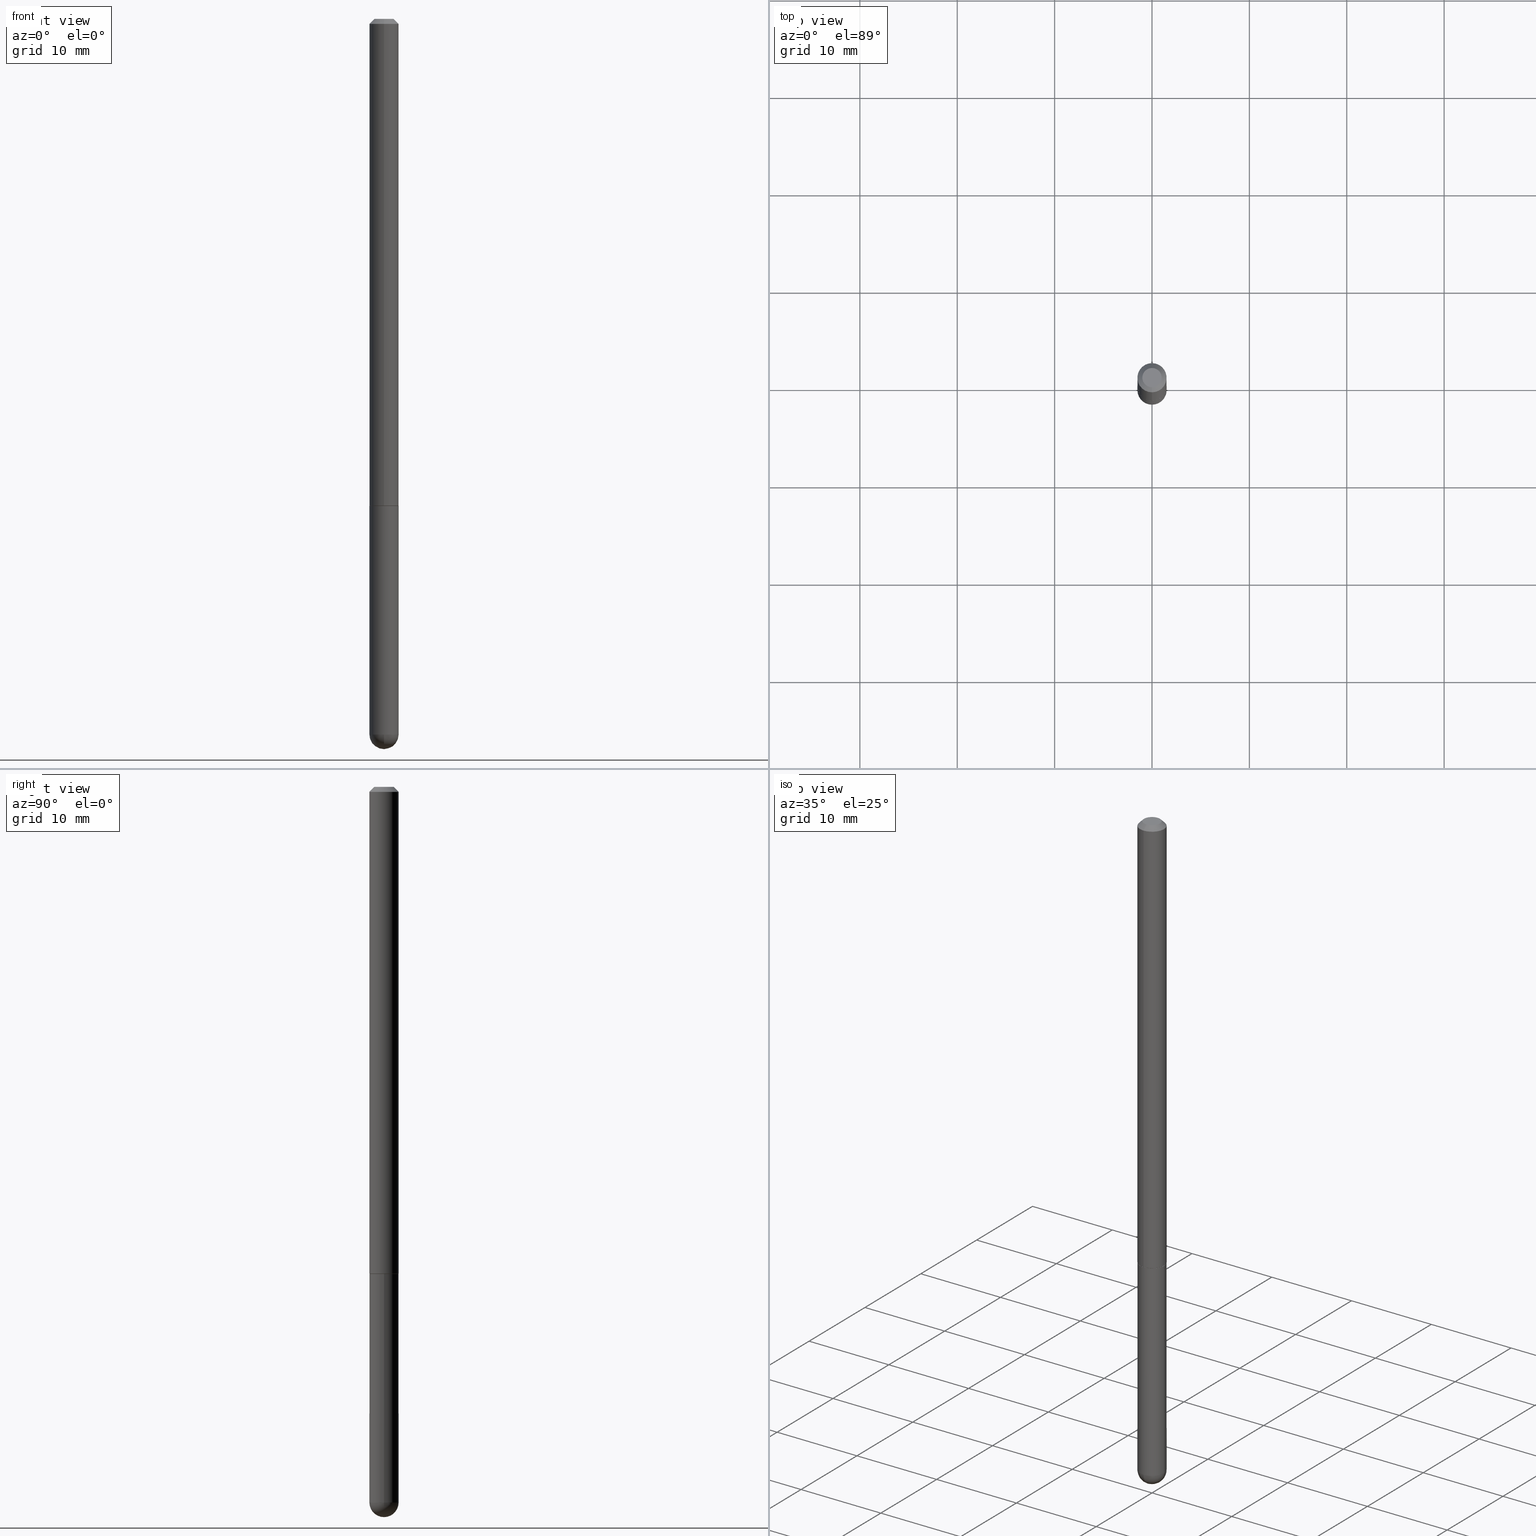
[diagram: canonical four-view strip — front | top / right | iso, engineering-drawing reading convention]
A machine part, canonical four-view strip (front | top / right | iso — engineering-drawing reading convention). The complete STEP part file that produces these views, byte-faithful:
ISO-10303-21;
HEADER;
FILE_DESCRIPTION (( 'STEP AP203' ),
    '1' );
FILE_NAME ('49583.STEP',
    '2024-04-10T12:29:02',
    ( '' ),
    ( '' ),
    'SwSTEP 2.0',
    'SolidWorks 2023',
    '' );
FILE_SCHEMA (( 'CONFIG_CONTROL_DESIGN' ));
ENDSEC;

DATA;
#1 = ADVANCED_FACE ( 'NONE', ( #72 ), #211, .F. ) ;
#2 = VERTEX_POINT ( 'NONE', #228 ) ;
#3 = CYLINDRICAL_SURFACE ( 'NONE', #190, 0.05905000000000010935 ) ;
#4 = DIRECTION ( 'NONE',  ( -2.452606242276133797E-29, 3.481260124123203654E-15, 1.000000000000000000 ) ) ;
#5 =( NAMED_UNIT ( * ) PLANE_ANGLE_UNIT ( ) SI_UNIT ( $, .RADIAN. ) );
#6 = APPROVAL ( #99, 'UNSPECIFIED' ) ;
#7 = ORIENTED_EDGE ( 'NONE', *, *, #314, .F. ) ;
#8 = APPLICATION_PROTOCOL_DEFINITION ( 'international standard', 'config_control_design', 1994, #85 ) ;
#9 = DIRECTION ( 'NONE',  ( -2.452606242276133797E-29, 3.481260124123203654E-15, 1.000000000000000000 ) ) ;
#10 = VERTEX_POINT ( 'NONE', #302 ) ;
#11 = AXIS2_PLACEMENT_3D ( 'NONE', #88, #191, #318 ) ;
#12 = ORIENTED_EDGE ( 'NONE', *, *, #275, .F. ) ;
#13 = ORIENTED_EDGE ( 'NONE', *, *, #178, .T. ) ;
#14 = LINE ( 'NONE', #297, #315 ) ;
#15 = COORDINATED_UNIVERSAL_TIME_OFFSET ( 5, 0, .BEHIND. ) ;
#16 = DIRECTION ( 'NONE',  ( -2.452606242276133797E-29, 3.481260124123203654E-15, 1.000000000000000000 ) ) ;
#17 = EDGE_CURVE ( 'NONE', #2, #140, #221, .T. ) ;
#18 = ORIENTED_EDGE ( 'NONE', *, *, #334, .F. ) ;
#19 = DIRECTION ( 'NONE',  ( 1.000000000000000000, -6.982962677686270655E-15, 0.000000000000000000 ) ) ;
#20 = DIRECTION ( 'NONE',  ( 1.000000000000000000, -6.982962677686270655E-15, 0.000000000000000000 ) ) ;
#21 = PERSON ( 'UNSPECIFIED', 'UNSPECIFIED', 'UNSPECIFIED', ('UNSPECIFIED'), ('UNSPECIFIED'), ('UNSPECIFIED') ) ;
#22 = ORIENTED_EDGE ( 'NONE', *, *, #245, .T. ) ;
#23 = AXIS2_PLACEMENT_3D ( 'NONE', #402, #213, #335 ) ;
#24 = CALENDAR_DATE ( 2024, 10, 4 ) ;
#25 = CIRCLE ( 'NONE', #168, 0.05905000000000001914 ) ;
#26 = AXIS2_PLACEMENT_3D ( 'NONE', #385, #200, #67 ) ;
#27 = DIRECTION ( 'NONE',  ( 6.982962677686265922E-15, 1.000000000000000000, 0.000000000000000000 ) ) ;
#28 = EDGE_CURVE ( 'NONE', #272, #289, #105, .T. ) ;
#29 = CARTESIAN_POINT ( 'NONE',  ( 7.076575357898237682E-29, -1.010347412427735067E-14, -2.893749999999999822 ) ) ;
#30 = DIRECTION ( 'NONE',  ( -2.452606242276133797E-29, 3.481260124123203654E-15, 1.000000000000000000 ) ) ;
#31 = EDGE_CURVE ( 'NONE', #390, #296, #183, .T. ) ;
#32 = AXIS2_PLACEMENT_3D ( 'NONE', #64, #319, #291 ) ;
#33 = DIRECTION ( 'NONE',  ( -2.452606242276133797E-29, 3.481260124123203654E-15, 1.000000000000000000 ) ) ;
#34 = CIRCLE ( 'NONE', #266, 0.05905000000000001914 ) ;
#35 = EDGE_LOOP ( 'NONE', ( #271, #98, #357, #109, #160 ) ) ;
#36 = AXIS2_PLACEMENT_3D ( 'NONE', #406, #121, #249 ) ;
#37 = ORGANIZATION ( 'UNSPECIFIED', 'UNSPECIFIED', '' ) ;
#38 = CARTESIAN_POINT ( 'NONE',  ( 4.827955387920569283E-29, -6.852860554336525173E-15, -1.968499999999999694 ) ) ;
#39 = CARTESIAN_POINT ( 'NONE',  ( -0.05905000000000001914, -8.068652084428701697E-15, -1.968499999999999694 ) ) ;
#40 = ORIENTED_EDGE ( 'NONE', *, *, #90, .F. ) ;
#41 = DATE_AND_TIME ( #332, #138 ) ;
#42 = CARTESIAN_POINT ( 'NONE',  ( 7.076575357898237682E-29, -1.010347412427735067E-14, -2.893749999999999822 ) ) ;
#43 = EDGE_LOOP ( 'NONE', ( #341, #172, #176, #300 ) ) ;
#44 = EDGE_LOOP ( 'NONE', ( #261, #165 ) ) ;
#45 = DIRECTION ( 'NONE',  ( -2.452606242276133237E-29, 3.481260124123204048E-15, 1.000000000000000000 ) ) ;
#46 = CARTESIAN_POINT ( 'NONE',  ( 7.076575357898237682E-29, -1.010347412427735067E-14, -2.893749999999999822 ) ) ;
#47 = PERSON_AND_ORGANIZATION_ROLE ( 'design_supplier' ) ;
#48 = CYLINDRICAL_SURFACE ( 'NONE', #57, 0.05905000000000010935 ) ;
#49 = DATE_AND_TIME ( #368, #92 ) ;
#50 = APPROVAL ( #139, 'UNSPECIFIED' ) ;
#51 = CARTESIAN_POINT ( 'NONE',  ( 4.195754854663646379E-16, 0.05904999999999335780, -1.967500000000000027 ) ) ;
#52 = EDGE_CURVE ( 'NONE', #2, #387, #258, .T. ) ;
#53 = AXIS2_PLACEMENT_3D ( 'NONE', #232, #355, #166 ) ;
#54 = VECTOR ( 'NONE', #403, 39.37007874015748143 ) ;
#55 = APPROVAL_STATUS ( 'not_yet_approved' ) ;
#56 = EDGE_CURVE ( 'NONE', #216, #10, #161, .T. ) ;
#57 = AXIS2_PLACEMENT_3D ( 'NONE', #137, #9, #177 ) ;
#58 = CARTESIAN_POINT ( 'NONE',  ( -4.053609834396394049E-16, -0.05805000000000685306, -1.968499999999999472 ) ) ;
#59 = MANIFOLD_SOLID_BREP ( 'Body-Move/Copy2[2]', #316 ) ;
#60 = VECTOR ( 'NONE', #198, 39.37007874015748143 ) ;
#61 = FACE_OUTER_BOUND ( 'NONE', #43, .T. ) ;
#62 =( LENGTH_UNIT ( ) NAMED_UNIT ( * ) SI_UNIT ( $, .METRE. ) );
#63 = DIRECTION ( 'NONE',  ( -2.445468806185136597E-29, 3.491481338843145583E-15, 1.000000000000000000 ) ) ;
#64 = CARTESIAN_POINT ( 'NONE',  ( 6.745455579984352556E-29, -1.057765649241740097E-14, -2.893749999999999822 ) ) ;
#65 = AXIS2_PLACEMENT_3D ( 'NONE', #107, #238, #132 ) ;
#66 = MECHANICAL_CONTEXT ( 'NONE', #206, 'mechanical' ) ;
#67 = DIRECTION ( 'NONE',  ( 1.000000000000000000, 0.000000000000000000, 0.000000000000000000 ) ) ;
#68 = LOCAL_TIME ( 8, 29, 2.000000000000000000, #278 ) ;
#69 = CARTESIAN_POINT ( 'NONE',  ( 4.123439461173745750E-16, 0.05904999999999994975, -0.02000000000000027450 ) ) ;
#70 = EDGE_LOOP ( 'NONE', ( #229, #134, #169, #18, #363 ) ) ;
#71 = FACE_OUTER_BOUND ( 'NONE', #321, .T. ) ;
#72 = FACE_OUTER_BOUND ( 'NONE', #44, .T. ) ;
#73 = ORIENTED_EDGE ( 'NONE', *, *, #17, .T. ) ;
#74 = DIRECTION ( 'NONE',  ( -2.452606242276133797E-29, 3.481260124123203654E-15, 1.000000000000000000 ) ) ;
#75 = PERSON_AND_ORGANIZATION_ROLE ( 'classification_officer' ) ;
#76 = PERSON_AND_ORGANIZATION ( #21, #37 ) ;
#77 = ORIENTED_EDGE ( 'NONE', *, *, #257, .F. ) ;
#78 = AXIS2_PLACEMENT_3D ( 'NONE', #348, #313, #113 ) ;
#79 = APPROVAL_DATE_TIME ( #395, #80 ) ;
#80 = APPROVAL ( #55, 'UNSPECIFIED' ) ;
#81 = DIRECTION ( 'NONE',  ( -2.452606242276133797E-29, 3.481260124123203654E-15, 1.000000000000000000 ) ) ;
#82 = SECURITY_CLASSIFICATION_LEVEL ( 'unclassified' ) ;
#83 = VECTOR ( 'NONE', #237, 39.37007874015748143 ) ;
#84 = DIRECTION ( 'NONE',  ( 2.452606242276133237E-29, -3.481260124123204048E-15, -1.000000000000000000 ) ) ;
#85 = APPLICATION_CONTEXT ( 'configuration controlled 3d designs of mechanical parts and assemblies' ) ;
#86 = PERSON_AND_ORGANIZATION ( #21, #37 ) ;
#87 = DIRECTION ( 'NONE',  ( -2.452606242276134078E-29, 3.481260124123204048E-15, 1.000000000000000000 ) ) ;
#88 = CARTESIAN_POINT ( 'NONE',  ( 4.905212484552284025E-31, -6.962520248246431022E-17, -0.02000000000000006981 ) ) ;
#89 = DIRECTION ( 'NONE',  ( 1.000000000000000000, -6.982962677686270655E-15, 0.000000000000000000 ) ) ;
#90 = EDGE_CURVE ( 'NONE', #387, #207, #210, .T. ) ;
#91 = CYLINDRICAL_SURFACE ( 'NONE', #400, 0.05905000000000001914 ) ;
#92 = LOCAL_TIME ( 8, 29, 2.000000000000000000, #225 ) ;
#93 =( GEOMETRIC_REPRESENTATION_CONTEXT ( 3 ) GLOBAL_UNCERTAINTY_ASSIGNED_CONTEXT ( ( #285 ) ) GLOBAL_UNIT_ASSIGNED_CONTEXT ( ( #254, #5, #356 ) ) REPRESENTATION_CONTEXT ( 'NONE', 'WORKASPACE' ) );
#94 = EDGE_CURVE ( 'NONE', #289, #272, #25, .T. ) ;
#95 = CARTESIAN_POINT ( 'NONE',  ( 6.745455579984352556E-29, -1.057765649241740097E-14, -2.893749999999999822 ) ) ;
#96 = ORIENTED_EDGE ( 'NONE', *, *, #345, .F. ) ;
#97 = DIRECTION ( 'NONE',  ( -1.000000000000000000, 6.982962677686265922E-15, -4.883557194083112340E-29 ) ) ;
#98 = ORIENTED_EDGE ( 'NONE', *, *, #56, .T. ) ;
#99 = APPROVAL_STATUS ( 'not_yet_approved' ) ;
#100 = ORIENTED_EDGE ( 'NONE', *, *, #338, .T. ) ;
#101 = LINE ( 'NONE', #69, #83 ) ;
#102 = EDGE_CURVE ( 'NONE', #140, #2, #404, .T. ) ;
#103 = LINE ( 'NONE', #133, #192 ) ;
#104 = ORIENTED_EDGE ( 'NONE', *, *, #90, .T. ) ;
#105 = CIRCLE ( 'NONE', #65, 0.05905000000000001914 ) ;
#106 = DIRECTION ( 'NONE',  ( 2.438088387897960049E-29, -3.491481338843145188E-15, -1.000000000000000000 ) ) ;
#107 = CARTESIAN_POINT ( 'NONE',  ( 4.813905344975440714E-29, -6.872981015512730918E-15, -1.968499999999999694 ) ) ;
#108 = AXIS2_PLACEMENT_3D ( 'NONE', #189, #33, #127 ) ;
#109 = ORIENTED_EDGE ( 'NONE', *, *, #334, .T. ) ;
#110 = AXIS2_PLACEMENT_3D ( 'NONE', #42, #235, #19 ) ;
#111 = LINE ( 'NONE', #219, #54 ) ;
#112 = VECTOR ( 'NONE', #87, 39.37007874015748143 ) ;
#113 = DIRECTION ( 'NONE',  ( -6.982962677686265922E-15, -1.000000000000000000, 3.469747663417776213E-15 ) ) ;
#114 = DIMENSIONAL_EXPONENTS ( 1.000000000000000000, 0.000000000000000000, 0.000000000000000000, 0.000000000000000000, 0.000000000000000000, 0.000000000000000000, 0.000000000000000000 ) ;
#115 = DIRECTION ( 'NONE',  ( 6.982962677686265922E-15, 1.000000000000000000, -3.469747663417776213E-15 ) ) ;
#116 = ADVANCED_FACE ( 'NONE', ( #252 ), #157, .T. ) ;
#117 = DIRECTION ( 'NONE',  ( -1.000000000000000000, 6.982962677686265922E-15, -4.883557194083112340E-29 ) ) ;
#118 = ADVANCED_FACE ( 'NONE', ( #224 ), #3, .T. ) ;
#119 = CARTESIAN_POINT ( 'NONE',  ( 4.905212484552284025E-31, -6.962520248246431022E-17, -0.02000000000000006981 ) ) ;
#120 = ADVANCED_FACE ( 'NONE', ( #61 ), #369, .T. ) ;
#121 = DIRECTION ( 'NONE',  ( -2.452606242276133797E-29, 3.481260124123203654E-15, 1.000000000000000000 ) ) ;
#122 = CIRCLE ( 'NONE', #32, 0.05905000000000025506 ) ;
#123 = DIRECTION ( 'NONE',  ( -2.445468806185136597E-29, 3.491481338843145583E-15, 1.000000000000000000 ) ) ;
#124 = LINE ( 'NONE', #381, #60 ) ;
#125 = CARTESIAN_POINT ( 'NONE',  ( -4.123439461173271448E-16, -0.05905000000000704824, -1.967499999999999361 ) ) ;
#126 = AXIS2_PLACEMENT_3D ( 'NONE', #29, #290, #188 ) ;
#127 = DIRECTION ( 'NONE',  ( -6.982962677686265922E-15, -1.000000000000000000, 4.706025828879006993E-15 ) ) ;
#128 = DIRECTION ( 'NONE',  ( 6.982962677686266711E-15, 1.000000000000000000, 0.000000000000000000 ) ) ;
#129 = ADVANCED_BREP_SHAPE_REPRESENTATION ( '49583', ( #333, #59, #26 ), #93 ) ;
#130 = AXIS2_PLACEMENT_3D ( 'NONE', #309, #84, #222 ) ;
#131 = ORIENTED_EDGE ( 'NONE', *, *, #52, .T. ) ;
#132 = DIRECTION ( 'NONE',  ( 1.000000000000000000, -6.982962677686270655E-15, 0.000000000000000000 ) ) ;
#133 = CARTESIAN_POINT ( 'NONE',  ( 0.05905000000000001914, -4.123439461173741806E-16, 2.879382386107500921E-30 ) ) ;
#134 = ORIENTED_EDGE ( 'NONE', *, *, #317, .T. ) ;
#135 = EDGE_CURVE ( 'NONE', #259, #136, #243, .T. ) ;
#136 = VERTEX_POINT ( 'NONE', #410 ) ;
#137 = CARTESIAN_POINT ( 'NONE',  ( 0.000000000000000000, 0.000000000000000000, 0.000000000000000000 ) ) ;
#138 = LOCAL_TIME ( 8, 29, 2.000000000000000000, #358 ) ;
#139 = APPROVAL_STATUS ( 'not_yet_approved' ) ;
#140 = VERTEX_POINT ( 'NONE', #322 ) ;
#141 = PLANE ( 'NONE',  #293 ) ;
#142 = CALENDAR_DATE ( 2024, 10, 4 ) ;
#143 = DIRECTION ( 'NONE',  ( -6.982962677686265922E-15, -1.000000000000000000, 4.706025828879006993E-15 ) ) ;
#144 = APPROVAL_DATE_TIME ( #268, #50 ) ;
#145 = EDGE_CURVE ( 'NONE', #140, #207, #124, .T. ) ;
#146 = EDGE_LOOP ( 'NONE', ( #149, #22, #342, #12 ) ) ;
#147 = CARTESIAN_POINT ( 'NONE',  ( 6.379281168747998857E-46, -9.054831864377244014E-32, -2.601021337541621032E-17 ) ) ;
#148 = ORIENTED_EDGE ( 'NONE', *, *, #102, .T. ) ;
#149 = ORIENTED_EDGE ( 'NONE', *, *, #178, .F. ) ;
#150 = DIRECTION ( 'NONE',  ( -2.452606242276133797E-29, 3.481260124123203654E-15, 1.000000000000000000 ) ) ;
#151 = DIRECTION ( 'NONE',  ( -6.982962677686265922E-15, -1.000000000000000000, 4.626330217890353559E-15 ) ) ;
#152 = CARTESIAN_POINT ( 'NONE',  ( 6.745455579984352556E-29, -1.057765649241740097E-14, -2.893749999999999822 ) ) ;
#153 = CC_DESIGN_APPROVAL ( #6, ( #324 ) ) ;
#154 = CARTESIAN_POINT ( 'NONE',  ( -4.051124067684085231E-16, -0.05905000000000008159, -0.01999999999999986511 ) ) ;
#155 = DIRECTION ( 'NONE',  ( -6.982962677686265922E-15, -1.000000000000000000, 3.481260124123203654E-15 ) ) ;
#156 = DIRECTION ( 'NONE',  ( -6.982962677686266711E-15, -1.000000000000000000, 3.481260124123204048E-15 ) ) ;
#157 = CYLINDRICAL_SURFACE ( 'NONE', #397, 0.05905000000000001914 ) ;
#158 = PERSON_AND_ORGANIZATION_ROLE ( 'design_owner' ) ;
#159 = AXIS2_PLACEMENT_3D ( 'NONE', #199, #4, #323 ) ;
#160 = ORIENTED_EDGE ( 'NONE', *, *, #94, .F. ) ;
#161 = CIRCLE ( 'NONE', #126, 0.05905000000000001914 ) ;
#162 = VERTEX_POINT ( 'NONE', #154 ) ;
#163 = FACE_OUTER_BOUND ( 'NONE', #304, .T. ) ;
#164 = APPROVAL_DATE_TIME ( #41, #6 ) ;
#165 = ORIENTED_EDGE ( 'NONE', *, *, #102, .F. ) ;
#166 = DIRECTION ( 'NONE',  ( 1.000000000000000000, -6.982962677686270655E-15, 0.000000000000000000 ) ) ;
#167 = AXIS2_PLACEMENT_3D ( 'NONE', #119, #185, #115 ) ;
#168 = AXIS2_PLACEMENT_3D ( 'NONE', #281, #63, #89 ) ;
#169 = ORIENTED_EDGE ( 'NONE', *, *, #28, .F. ) ;
#170 = PERSON_AND_ORGANIZATION ( #21, #37 ) ;
#171 = ORIENTED_EDGE ( 'NONE', *, *, #145, .F. ) ;
#172 = ORIENTED_EDGE ( 'NONE', *, *, #257, .T. ) ;
#173 = DIRECTION ( 'NONE',  ( -6.982962677686265922E-15, -1.000000000000000000, 3.469747663417776213E-15 ) ) ;
#174 = DIRECTION ( 'NONE',  ( -2.445468806185136597E-29, 3.491481338843145583E-15, 1.000000000000000000 ) ) ;
#175 = ADVANCED_FACE ( 'NONE', ( #371 ), #351, .T. ) ;
#176 = ORIENTED_EDGE ( 'NONE', *, *, #182, .T. ) ;
#177 = DIRECTION ( 'NONE',  ( -6.982962677686265922E-15, -1.000000000000000000, 3.481260124123203654E-15 ) ) ;
#178 = EDGE_CURVE ( 'NONE', #207, #267, #346, .T. ) ;
#179 = COORDINATED_UNIVERSAL_TIME_OFFSET ( 5, 0, .BEHIND. ) ;
#180 = APPROVAL_PERSON_ORGANIZATION ( #86, #80, #405 ) ;
#181 = FACE_OUTER_BOUND ( 'NONE', #365, .T. ) ;
#182 = EDGE_CURVE ( 'NONE', #162, #267, #383, .T. ) ;
#183 = CIRCLE ( 'NONE', #288, 0.05905000000000001914 ) ;
#184 = CLOSED_SHELL ( 'NONE', ( #407, #373, #255, #362, #116 ) ) ;
#185 = DIRECTION ( 'NONE',  ( 2.452606242276133797E-29, -3.481260124123203654E-15, -1.000000000000000000 ) ) ;
#186 = EDGE_CURVE ( 'NONE', #387, #162, #242, .T. ) ;
#187 = APPROVAL_PERSON_ORGANIZATION ( #388, #6, #230 ) ;
#188 = DIRECTION ( 'NONE',  ( 1.000000000000000000, -6.982962677686270655E-15, 0.000000000000000000 ) ) ;
#189 = CARTESIAN_POINT ( 'NONE',  ( 4.827955387920569283E-29, -6.852860554336525173E-15, -1.968499999999999694 ) ) ;
#190 = AXIS2_PLACEMENT_3D ( 'NONE', #374, #30, #155 ) ;
#191 = DIRECTION ( 'NONE',  ( 2.452606242276133797E-29, -3.481260124123203654E-15, -1.000000000000000000 ) ) ;
#192 = VECTOR ( 'NONE', #361, 39.37007874015748143 ) ;
#193 = ADVANCED_FACE ( 'NONE', ( #181 ), #248, .F. ) ;
#194 = CARTESIAN_POINT ( 'NONE',  ( 6.379281168747998857E-46, -9.054831864377244014E-32, -2.601021337541621032E-17 ) ) ;
#195 = DIRECTION ( 'NONE',  ( 1.000000000000000000, -6.982962677686265922E-15, 4.883557194083112340E-29 ) ) ;
#196 = DESIGN_CONTEXT ( 'detailed design', #85, 'design' ) ;
#197 = AXIS2_PLACEMENT_3D ( 'NONE', #38, #16, #143 ) ;
#198 = DIRECTION ( 'NONE',  ( 5.024295867788404755E-15, 0.7071067811865981989, 0.7071067811864968355 ) ) ;
#199 = CARTESIAN_POINT ( 'NONE',  ( 4.827955387920569283E-29, -6.852860554336525173E-15, -1.968499999999999694 ) ) ;
#200 = DIRECTION ( 'NONE',  ( 0.000000000000000000, 0.000000000000000000, 1.000000000000000000 ) ) ;
#201 = ORIENTED_EDGE ( 'NONE', *, *, #52, .F. ) ;
#202 = CC_DESIGN_DATE_AND_TIME_ASSIGNMENT ( #49, #218, ( #324 ) ) ;
#203 = CARTESIAN_POINT ( 'NONE',  ( 4.905212484552284025E-31, -6.962520248246431022E-17, -0.02000000000000006981 ) ) ;
#204 = DIRECTION ( 'NONE',  ( 6.982962677686265922E-15, 1.000000000000000000, 0.000000000000000000 ) ) ;
#205 = ORIENTED_EDGE ( 'NONE', *, *, #389, .T. ) ;
#206 = APPLICATION_CONTEXT ( 'configuration controlled 3d designs of mechanical parts and assemblies' ) ;
#207 = VERTEX_POINT ( 'NONE', #51 ) ;
#208 = EDGE_LOOP ( 'NONE', ( #339, #205, #212, #7 ) ) ;
#209 = CARTESIAN_POINT ( 'NONE',  ( 3.425143193405116713E-16, 0.03905000000000002219, -1.619534212224273876E-16 ) ) ;
#210 = CIRCLE ( 'NONE', #36, 0.05905000000000020649 ) ;
#211 = PLANE ( 'NONE',  #412 ) ;
#212 = ORIENTED_EDGE ( 'NONE', *, *, #56, .F. ) ;
#213 = DIRECTION ( 'NONE',  ( -2.452606242276133797E-29, 3.481260124123203654E-15, 1.000000000000000000 ) ) ;
#214 = AXIS2_PLACEMENT_3D ( 'NONE', #95, #97, #204 ) ;
#215 = PERSON_AND_ORGANIZATION_ROLE ( 'creator' ) ;
#216 = VERTEX_POINT ( 'NONE', #370 ) ;
#217 = FACE_OUTER_BOUND ( 'NONE', #236, .T. ) ;
#218 = DATE_TIME_ROLE ( 'creation_date' ) ;
#219 = CARTESIAN_POINT ( 'NONE',  ( -4.051124067684085231E-16, -0.05905000000000008159, -0.01999999999999986511 ) ) ;
#220 = PERSON_AND_ORGANIZATION ( #21, #37 ) ;
#221 = CIRCLE ( 'NONE', #197, 0.05804999999999999744 ) ;
#222 = DIRECTION ( 'NONE',  ( 6.982962677686265922E-15, 1.000000000000000000, -3.481260124123204048E-15 ) ) ;
#223 = AXIS2_PLACEMENT_3D ( 'NONE', #194, #286, #156 ) ;
#224 = FACE_OUTER_BOUND ( 'NONE', #146, .T. ) ;
#225 = COORDINATED_UNIVERSAL_TIME_OFFSET ( 5, 0, .BEHIND. ) ;
#226 = PERSON_AND_ORGANIZATION ( #21, #37 ) ;
#227 = APPLICATION_PROTOCOL_DEFINITION ( 'international standard', 'config_control_design', 1994, #206 ) ;
#228 = CARTESIAN_POINT ( 'NONE',  ( -4.053609834396394049E-16, -0.05805000000000685306, -1.968499999999999472 ) ) ;
#229 = ORIENTED_EDGE ( 'NONE', *, *, #314, .T. ) ;
#230 = APPROVAL_ROLE ( '' ) ;
#231 = SECURITY_CLASSIFICATION ( '', '', #82 ) ;
#232 = CARTESIAN_POINT ( 'NONE',  ( 7.076575357898237682E-29, -1.010347412427735067E-14, -2.893749999999999822 ) ) ;
#233 = AXIS2_PLACEMENT_3D ( 'NONE', #152, #117, #27 ) ;
#234 = ORIENTED_EDGE ( 'NONE', *, *, #182, .F. ) ;
#235 = DIRECTION ( 'NONE',  ( -2.445468806185136597E-29, 3.491481338843145583E-15, 1.000000000000000000 ) ) ;
#236 = EDGE_LOOP ( 'NONE', ( #73, #239, #40, #201 ) ) ;
#237 = DIRECTION ( 'NONE',  ( 4.937700262164541731E-15, 0.7071067811865442421, -0.7071067811865507924 ) ) ;
#238 = DIRECTION ( 'NONE',  ( -2.445468806185136597E-29, 3.491481338843145583E-15, 1.000000000000000000 ) ) ;
#239 = ORIENTED_EDGE ( 'NONE', *, *, #145, .T. ) ;
#240 = CC_DESIGN_PERSON_AND_ORGANIZATION_ASSIGNMENT ( #298, #262, ( #324 ) ) ;
#241 = CONICAL_SURFACE ( 'NONE', #23, 0.05804999999999999744, 0.7853981633975165577 ) ;
#242 = LINE ( 'NONE', #244, #294 ) ;
#243 = CIRCLE ( 'NONE', #223, 0.03905000000000002219 ) ;
#244 = CARTESIAN_POINT ( 'NONE',  ( -4.123439461173747722E-16, -0.05905000000000010935, 2.055684103294755676E-16 ) ) ;
#245 = EDGE_CURVE ( 'NONE', #207, #387, #376, .T. ) ;
#246 = DATE_AND_TIME ( #24, #256 ) ;
#247 = CIRCLE ( 'NONE', #53, 0.05905000000000001914 ) ;
#248 = PLANE ( 'NONE',  #130 ) ;
#249 = DIRECTION ( 'NONE',  ( -6.982962677686265922E-15, -1.000000000000000000, 4.626330217890353559E-15 ) ) ;
#250 = CIRCLE ( 'NONE', #320, 0.05905000000000025506 ) ;
#251 = PRODUCT_RELATED_PRODUCT_CATEGORY ( 'detail', '', ( #384 ) ) ;
#252 = FACE_OUTER_BOUND ( 'NONE', #35, .T. ) ;
#253 = CARTESIAN_POINT ( 'NONE',  ( 0.05905000000000001914, -8.900571516012416899E-15, -2.893749999999999822 ) ) ;
#254 =( CONVERSION_BASED_UNIT ( 'INCH', #325 ) LENGTH_UNIT ( ) NAMED_UNIT ( #114 ) );
#255 = ADVANCED_FACE ( 'NONE', ( #347 ), #372, .T. ) ;
#256 = LOCAL_TIME ( 8, 29, 2.000000000000000000, #15 ) ;
#257 = EDGE_CURVE ( 'NONE', #136, #162, #111, .T. ) ;
#258 = LINE ( 'NONE', #58, #295 ) ;
#259 = VERTEX_POINT ( 'NONE', #209 ) ;
#260 = CARTESIAN_POINT ( 'NONE',  ( 6.892385391458386628E-29, -1.078021269580160693E-14, -2.952799999999999869 ) ) ;
#261 = ORIENTED_EDGE ( 'NONE', *, *, #17, .F. ) ;
#262 = PERSON_AND_ORGANIZATION_ROLE ( 'creator' ) ;
#263 = ORIENTED_EDGE ( 'NONE', *, *, #186, .F. ) ;
#264 = CIRCLE ( 'NONE', #301, 0.03905000000000002219 ) ;
#265 = DIRECTION ( 'NONE',  ( -2.445468806185136877E-29, 3.491481338843145188E-15, 1.000000000000000000 ) ) ;
#266 = AXIS2_PLACEMENT_3D ( 'NONE', #203, #150, #173 ) ;
#267 = VERTEX_POINT ( 'NONE', #328 ) ;
#268 = DATE_AND_TIME ( #308, #283 ) ;
#269 = ORIENTED_EDGE ( 'NONE', *, *, #359, .T. ) ;
#270 = CARTESIAN_POINT ( 'NONE',  ( 4.123439461174222518E-16, 0.05904999999999314270, -1.968500000000000139 ) ) ;
#271 = ORIENTED_EDGE ( 'NONE', *, *, #317, .F. ) ;
#272 = VERTEX_POINT ( 'NONE', #273 ) ;
#273 = CARTESIAN_POINT ( 'NONE',  ( 0.05905000000000001914, -7.285324961630105839E-15, -1.968499999999999694 ) ) ;
#274 = ORIENTED_EDGE ( 'NONE', *, *, #94, .T. ) ;
#275 = EDGE_CURVE ( 'NONE', #267, #162, #34, .T. ) ;
#276 = CC_DESIGN_APPROVAL ( #80, ( #231 ) ) ;
#277 = SHAPE_DEFINITION_REPRESENTATION ( #331, #129 ) ;
#278 = COORDINATED_UNIVERSAL_TIME_OFFSET ( 5, 0, .BEHIND. ) ;
#279 = DIRECTION ( 'NONE',  ( -2.452606242276134078E-29, 3.481260124123204048E-15, 1.000000000000000000 ) ) ;
#280 = ADVANCED_FACE ( 'NONE', ( #217 ), #241, .T. ) ;
#281 = CARTESIAN_POINT ( 'NONE',  ( 4.813905344975440714E-29, -6.872981015512730918E-15, -1.968499999999999694 ) ) ;
#282 = CC_DESIGN_PERSON_AND_ORGANIZATION_ASSIGNMENT ( #76, #215, ( #408 ) ) ;
#283 = LOCAL_TIME ( 8, 29, 2.000000000000000000, #179 ) ;
#284 = ADVANCED_FACE ( 'NONE', ( #303 ), #48, .T. ) ;
#285 = UNCERTAINTY_MEASURE_WITH_UNIT (LENGTH_MEASURE( 1.000000000000000082E-05 ), #254, 'distance_accuracy_value', 'NONE');
#286 = DIRECTION ( 'NONE',  ( -2.452606242276133797E-29, 3.481260124123203654E-15, 1.000000000000000000 ) ) ;
#287 = SPHERICAL_SURFACE ( 'NONE', #214, 0.05905000000000025506 ) ;
#288 = AXIS2_PLACEMENT_3D ( 'NONE', #46, #174, #20 ) ;
#289 = VERTEX_POINT ( 'NONE', #39 ) ;
#290 = DIRECTION ( 'NONE',  ( -2.445468806185136597E-29, 3.491481338843145583E-15, 1.000000000000000000 ) ) ;
#291 = DIRECTION ( 'NONE',  ( -7.105427357601001070E-15, -1.000000000000000000, 0.000000000000000000 ) ) ;
#292 = FACE_OUTER_BOUND ( 'NONE', #70, .T. ) ;
#293 = AXIS2_PLACEMENT_3D ( 'NONE', #270, #106, #366 ) ;
#294 = VECTOR ( 'NONE', #279, 39.37007874015748143 ) ;
#295 = VECTOR ( 'NONE', #378, 39.37007874015748143 ) ;
#296 = VERTEX_POINT ( 'NONE', #307 ) ;
#297 = CARTESIAN_POINT ( 'NONE',  ( -0.05905000000000001914, 4.195754854663392958E-16, -2.904631170795522943E-30 ) ) ;
#298 = PERSON_AND_ORGANIZATION ( #21, #37 ) ;
#299 = ORIENTED_EDGE ( 'NONE', *, *, #389, .F. ) ;
#300 = ORIENTED_EDGE ( 'NONE', *, *, #338, .F. ) ;
#301 = AXIS2_PLACEMENT_3D ( 'NONE', #147, #74, #364 ) ;
#302 = CARTESIAN_POINT ( 'NONE',  ( -4.195754854662709114E-16, -0.05905000000001047605, -2.893749999999999822 ) ) ;
#303 = FACE_OUTER_BOUND ( 'NONE', #326, .T. ) ;
#304 = EDGE_LOOP ( 'NONE', ( #171, #148, #131, #401 ) ) ;
#305 = CC_DESIGN_DATE_AND_TIME_ASSIGNMENT ( #246, #311, ( #231 ) ) ;
#306 = EDGE_LOOP ( 'NONE', ( #77, #394, #100, #344 ) ) ;
#307 = CARTESIAN_POINT ( 'NONE',  ( 4.123439461174440441E-16, 0.05904999999998979815, -2.893749999999999822 ) ) ;
#308 = CALENDAR_DATE ( 2024, 10, 4 ) ;
#309 = CARTESIAN_POINT ( 'NONE',  ( 2.726846925636488661E-16, 0.03905000000000002219, -1.489483145347192794E-16 ) ) ;
#310 = CARTESIAN_POINT ( 'NONE',  ( 4.825502781678292621E-29, -6.849379294212400691E-15, -1.967499999999999805 ) ) ;
#311 = DATE_TIME_ROLE ( 'classification_date' ) ;
#312 = CARTESIAN_POINT ( 'NONE',  ( 4.195754854663398874E-16, 0.05905000000000010935, -2.055684103294755676E-16 ) ) ;
#313 = DIRECTION ( 'NONE',  ( -2.452606242276133797E-29, 3.481260124123203654E-15, 1.000000000000000000 ) ) ;
#314 = EDGE_CURVE ( 'NONE', #296, #216, #247, .T. ) ;
#315 = VECTOR ( 'NONE', #265, 39.37007874015748143 ) ;
#316 = CLOSED_SHELL ( 'NONE', ( #280, #284, #120, #175, #118, #392, #1, #193 ) ) ;
#317 = EDGE_CURVE ( 'NONE', #216, #289, #14, .T. ) ;
#318 = DIRECTION ( 'NONE',  ( 6.982962677686265922E-15, 1.000000000000000000, -3.469747663417776213E-15 ) ) ;
#319 = DIRECTION ( 'NONE',  ( -1.000000000000000000, 7.105427357601001070E-15, -4.926315508542082329E-29 ) ) ;
#320 = AXIS2_PLACEMENT_3D ( 'NONE', #379, #195, #128 ) ;
#321 = EDGE_LOOP ( 'NONE', ( #367, #274 ) ) ;
#322 = CARTESIAN_POINT ( 'NONE',  ( 4.160227717875875531E-16, 0.05804999999999314181, -1.968500000000000139 ) ) ;
#323 = DIRECTION ( 'NONE',  ( -6.982962677686265922E-15, -1.000000000000000000, 4.706025828879006993E-15 ) ) ;
#324 = PRODUCT_DEFINITION ( 'UNKNOWN', '', #408, #196 ) ;
#325 = LENGTH_MEASURE_WITH_UNIT ( LENGTH_MEASURE( 0.02539999999999999897 ), #62 );
#326 = EDGE_LOOP ( 'NONE', ( #104, #13, #234, #263 ) ) ;
#327 = ORIENTED_EDGE ( 'NONE', *, *, #135, .T. ) ;
#328 = CARTESIAN_POINT ( 'NONE',  ( 4.123439461173745750E-16, 0.05904999999999994975, -0.02000000000000027450 ) ) ;
#329 = CARTESIAN_POINT ( 'NONE',  ( 0.000000000000000000, 0.000000000000000000, 0.000000000000000000 ) ) ;
#330 = ORIENTED_EDGE ( 'NONE', *, *, #399, .T. ) ;
#331 = PRODUCT_DEFINITION_SHAPE ( 'NONE', 'NONE',  #324 ) ;
#332 = CALENDAR_DATE ( 2024, 10, 4 ) ;
#333 = MANIFOLD_SOLID_BREP ( 'Body-Move/Copy2[1]', #184 ) ;
#334 = EDGE_CURVE ( 'NONE', #390, #272, #103, .T. ) ;
#335 = DIRECTION ( 'NONE',  ( -6.982962677686265922E-15, -1.000000000000000000, 4.706025828879006993E-15 ) ) ;
#336 = VERTEX_POINT ( 'NONE', #260 ) ;
#337 = APPROVAL_ROLE ( '' ) ;
#338 = EDGE_CURVE ( 'NONE', #259, #267, #101, .T. ) ;
#339 = ORIENTED_EDGE ( 'NONE', *, *, #399, .F. ) ;
#340 = CARTESIAN_POINT ( 'NONE',  ( 4.827955387920569283E-29, -6.852860554336525173E-15, -1.968499999999999694 ) ) ;
#341 = ORIENTED_EDGE ( 'NONE', *, *, #359, .F. ) ;
#342 = ORIENTED_EDGE ( 'NONE', *, *, #186, .T. ) ;
#343 = PERSON_AND_ORGANIZATION ( #21, #37 ) ;
#344 = ORIENTED_EDGE ( 'NONE', *, *, #275, .T. ) ;
#345 = EDGE_CURVE ( 'NONE', #10, #390, #360, .T. ) ;
#346 = LINE ( 'NONE', #312, #112 ) ;
#347 = FACE_OUTER_BOUND ( 'NONE', #393, .T. ) ;
#348 = CARTESIAN_POINT ( 'NONE',  ( 4.905212484552284025E-31, -6.962520248246431022E-17, -0.02000000000000006981 ) ) ;
#349 = CONICAL_SURFACE ( 'NONE', #159, 0.05804999999999999744, 0.7853981633975165577 ) ;
#350 = CC_DESIGN_PERSON_AND_ORGANIZATION_ASSIGNMENT ( #226, #158, ( #384 ) ) ;
#351 = CONICAL_SURFACE ( 'NONE', #167, 0.05905000000000001914, 0.7853981633974471688 ) ;
#352 = CARTESIAN_POINT ( 'NONE',  ( 0.000000000000000000, 0.000000000000000000, 0.000000000000000000 ) ) ;
#353 = DIRECTION ( 'NONE',  ( 1.000000000000000000, -6.982962677686266711E-15, 4.876176775795935793E-29 ) ) ;
#354 = DIRECTION ( 'NONE',  ( -2.445468806185136597E-29, 3.491481338843145583E-15, 1.000000000000000000 ) ) ;
#355 = DIRECTION ( 'NONE',  ( -2.445468806185136597E-29, 3.491481338843145583E-15, 1.000000000000000000 ) ) ;
#356 =( NAMED_UNIT ( * ) SI_UNIT ( $, .STERADIAN. ) SOLID_ANGLE_UNIT ( ) );
#357 = ORIENTED_EDGE ( 'NONE', *, *, #345, .T. ) ;
#358 = COORDINATED_UNIVERSAL_TIME_OFFSET ( 5, 0, .BEHIND. ) ;
#359 = EDGE_CURVE ( 'NONE', #136, #259, #264, .T. ) ;
#360 = CIRCLE ( 'NONE', #110, 0.05905000000000001914 ) ;
#361 = DIRECTION ( 'NONE',  ( -2.445468806185136877E-29, 3.491481338843145188E-15, 1.000000000000000000 ) ) ;
#362 = ADVANCED_FACE ( 'NONE', ( #71 ), #141, .F. ) ;
#363 = ORIENTED_EDGE ( 'NONE', *, *, #31, .T. ) ;
#364 = DIRECTION ( 'NONE',  ( -6.982962677686266711E-15, -1.000000000000000000, 3.481260124123204048E-15 ) ) ;
#365 = EDGE_LOOP ( 'NONE', ( #327, #269 ) ) ;
#366 = DIRECTION ( 'NONE',  ( -1.000000000000000000, 6.982962677686265922E-15, -4.876176775795935793E-29 ) ) ;
#367 = ORIENTED_EDGE ( 'NONE', *, *, #28, .T. ) ;
#368 = CALENDAR_DATE ( 2024, 10, 4 ) ;
#369 = CONICAL_SURFACE ( 'NONE', #11, 0.05905000000000001914, 0.7853981633974471688 ) ;
#370 = CARTESIAN_POINT ( 'NONE',  ( -0.05905000000000001914, -8.068652084428701697E-15, -2.893749999999999822 ) ) ;
#371 = FACE_OUTER_BOUND ( 'NONE', #306, .T. ) ;
#372 = SPHERICAL_SURFACE ( 'NONE', #233, 0.05905000000000025506 ) ;
#373 = ADVANCED_FACE ( 'NONE', ( #411 ), #287, .T. ) ;
#374 = CARTESIAN_POINT ( 'NONE',  ( 0.000000000000000000, 0.000000000000000000, 0.000000000000000000 ) ) ;
#375 = APPROVAL_PERSON_ORGANIZATION ( #170, #50, #337 ) ;
#376 = CIRCLE ( 'NONE', #409, 0.05905000000000020649 ) ;
#377 = DIRECTION ( 'NONE',  ( 1.000000000000000000, -6.982962677686266711E-15, 4.876176775795935793E-29 ) ) ;
#378 = DIRECTION ( 'NONE',  ( -4.937700262164884886E-15, -0.7071067811865933139, 0.7071067811865017205 ) ) ;
#379 = CARTESIAN_POINT ( 'NONE',  ( 6.745455579984352556E-29, -1.057765649241740097E-14, -2.893749999999999822 ) ) ;
#380 = CC_DESIGN_PERSON_AND_ORGANIZATION_ASSIGNMENT ( #220, #75, ( #231 ) ) ;
#381 = CARTESIAN_POINT ( 'NONE',  ( 4.124700581087863588E-16, 0.05804999999999314181, -1.968500000000000139 ) ) ;
#382 = CC_DESIGN_SECURITY_CLASSIFICATION ( #231, ( #408 ) ) ;
#383 = CIRCLE ( 'NONE', #78, 0.05905000000000001914 ) ;
#384 = PRODUCT ( '49583', '49583', '', ( #66 ) ) ;
#385 = CARTESIAN_POINT ( 'NONE',  ( 0.000000000000000000, 0.000000000000000000, 0.000000000000000000 ) ) ;
#386 = CC_DESIGN_PERSON_AND_ORGANIZATION_ASSIGNMENT ( #343, #47, ( #408 ) ) ;
#387 = VERTEX_POINT ( 'NONE', #125 ) ;
#388 = PERSON_AND_ORGANIZATION ( #21, #37 ) ;
#389 = EDGE_CURVE ( 'NONE', #336, #10, #122, .T. ) ;
#390 = VERTEX_POINT ( 'NONE', #253 ) ;
#391 = CC_DESIGN_APPROVAL ( #50, ( #408 ) ) ;
#392 = ADVANCED_FACE ( 'NONE', ( #163 ), #349, .T. ) ;
#393 = EDGE_LOOP ( 'NONE', ( #299, #330, #398, #96 ) ) ;
#394 = ORIENTED_EDGE ( 'NONE', *, *, #135, .F. ) ;
#395 = DATE_AND_TIME ( #142, #68 ) ;
#396 = DIRECTION ( 'NONE',  ( -6.982962677686265922E-15, -1.000000000000000000, 3.481260124123204048E-15 ) ) ;
#397 = AXIS2_PLACEMENT_3D ( 'NONE', #352, #123, #377 ) ;
#398 = ORIENTED_EDGE ( 'NONE', *, *, #31, .F. ) ;
#399 = EDGE_CURVE ( 'NONE', #336, #296, #250, .T. ) ;
#400 = AXIS2_PLACEMENT_3D ( 'NONE', #329, #354, #353 ) ;
#401 = ORIENTED_EDGE ( 'NONE', *, *, #245, .F. ) ;
#402 = CARTESIAN_POINT ( 'NONE',  ( 4.827955387920569283E-29, -6.852860554336525173E-15, -1.968499999999999694 ) ) ;
#403 = DIRECTION ( 'NONE',  ( -4.851104656540957964E-15, -0.7071067811865491270, -0.7071067811865459074 ) ) ;
#404 = CIRCLE ( 'NONE', #108, 0.05804999999999999744 ) ;
#405 = APPROVAL_ROLE ( '' ) ;
#406 = CARTESIAN_POINT ( 'NONE',  ( 4.825502781678292621E-29, -6.849379294212400691E-15, -1.967499999999999805 ) ) ;
#407 = ADVANCED_FACE ( 'NONE', ( #292 ), #91, .T. ) ;
#408 = PRODUCT_DEFINITION_FORMATION_WITH_SPECIFIED_SOURCE ( 'ANY', '', #384, .NOT_KNOWN. ) ;
#409 = AXIS2_PLACEMENT_3D ( 'NONE', #310, #81, #151 ) ;
#410 = CARTESIAN_POINT ( 'NONE',  ( -3.365074267906934875E-16, -0.03905000000000002219, 1.099329944715949670E-16 ) ) ;
#411 = FACE_OUTER_BOUND ( 'NONE', #208, .T. ) ;
#412 = AXIS2_PLACEMENT_3D ( 'NONE', #340, #45, #396 ) ;
ENDSEC;
END-ISO-10303-21;
